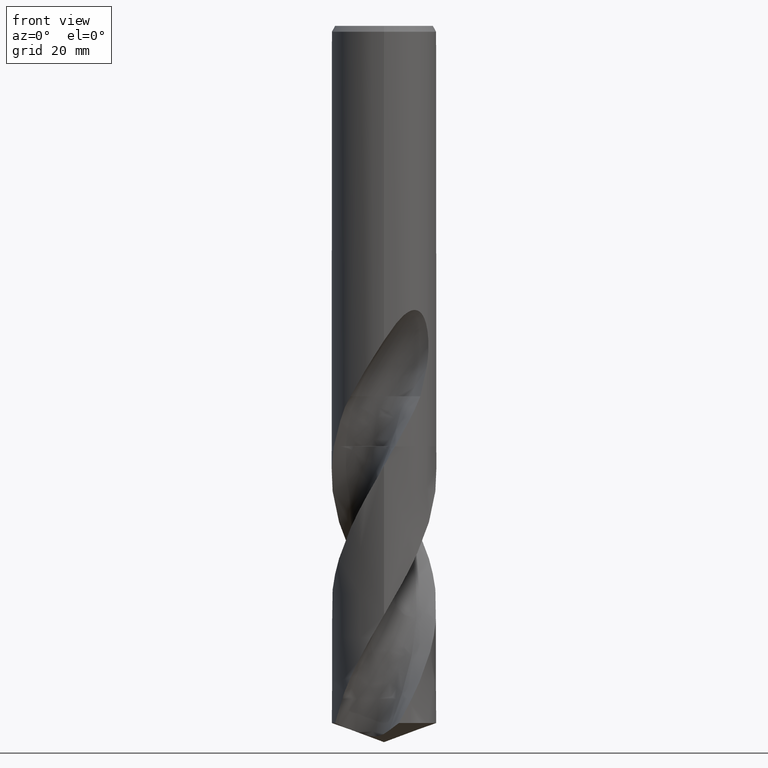
[diagram: clean part render]
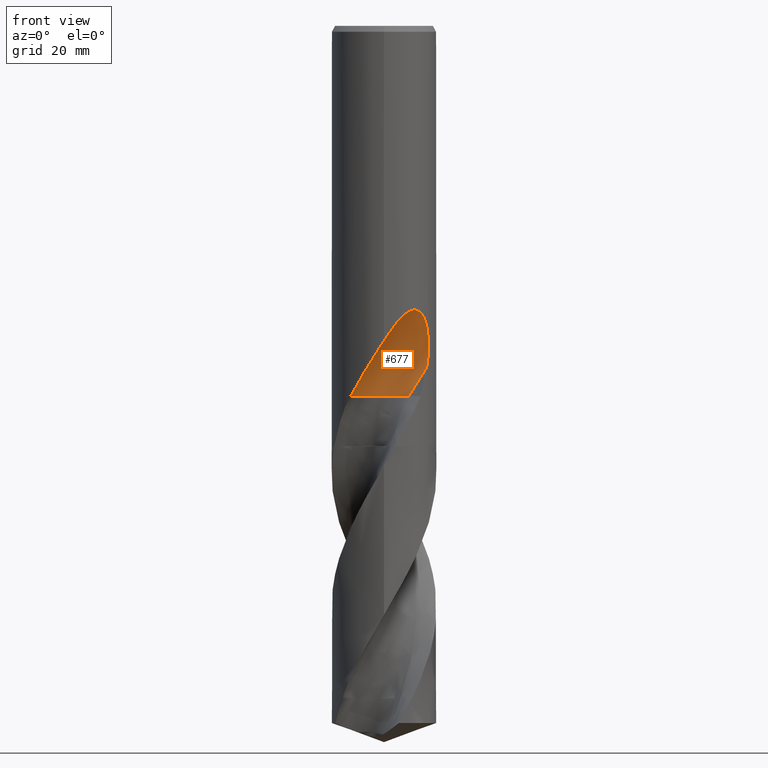
[diagram: same view with one face highlighted and labeled with its STEP entity id]
A machine part, front view. The second image highlights one B-rep face of the part: STEP entity #677.
In plain terms, the highlighted face is a SurfaceOfRevolution surface.
Its self-contained STEP definition (entity closure, byte-faithful):
#337=EDGE_CURVE('',#605,#355,#856,.T.);
#347=VERTEX_POINT('',#866);
#355=VERTEX_POINT('',#876);
#397=EDGE_CURVE('',#483,#605,#922,.T.);
#471=VERTEX_POINT('',#1005);
#483=VERTEX_POINT('',#1017);
#605=VERTEX_POINT('',#1151);
#625=EDGE_CURVE('',#347,#471,#1172,.T.);
#677=ADVANCED_FACE('',(#1227),#1228,.F.);
#747=EDGE_CURVE('',#355,#471,#1305,.T.);
#759=EDGE_CURVE('',#483,#347,#1318,.T.);
#856=CIRCLE('',#2321,6.0);
#866=CARTESIAN_POINT('',(3.49161102591519E-013,-9.0,-54.0462201875557));
#876=CARTESIAN_POINT('',(4.24264068704858,-4.45735931295143,-63.613));
#922=CIRCLE('',#3381,6.0);
#1005=CARTESIAN_POINT('',(7.32277946978824,-5.23229403195653,-58.6847779476165));
#1017=CARTESIAN_POINT('',(-5.73492168841538,-6.93618578382549,-63.613));
#1151=CARTESIAN_POINT('',(0.982866494863649,-2.78102920504439,-63.613));
#1172=B_SPLINE_CURVE_WITH_KNOTS('',3,(#6510,#6511,#6512,#6513,#6514,#6515,#6516,#6517,#6518,#6519,#6520,#6521,#6522,#6523,#6524,#6525,#6526,#6527,#6528,#6529,#6530,#6531,#6532,#6533,#6534,#6535,#6536,#6537,#6538,#6539),.UNSPECIFIED.,.F.,.F.,(4,2,2,2,2,2,2,2,2,2,2,2,2,2,4),(0.0,4.26297681796826,6.71123824567686,8.8923502902523,11.4048404132072,14.4393236699672,17.2190104172515,18.4220665226576,19.2988195253437,20.1268227676965,21.1747033682301,22.7056772339523,24.8835914108054,26.3262060908734,27.8429149951343),.UNSPECIFIED.);
#1227=FACE_OUTER_BOUND('',#6744,.T.);
#1228=SURFACE_OF_REVOLUTION('',#6745,#6746);
#1305=CIRCLE('',#8175,39.1073391014154);
#1318=B_SPLINE_CURVE_WITH_KNOTS('',3,(#8221,#8222,#8223,#8224,#8225,#8226,#8227,#8228,#8229,#8230,#8231,#8232,#8233,#8234,#8235,#8236,#8237,#8238,#8239,#8240,#8241,#8242,#8243,#8244,#8245,#8246,#8247,#8248,#8249,#8250),.UNSPECIFIED.,.F.,.F.,(4,2,2,2,2,2,2,2,2,2,2,2,2,2,4),(0.0,4.26297681796826,6.71123824567686,8.8923502902523,11.4048404132072,14.4393236699672,17.2190104172515,18.4220665226576,19.2988195253437,20.1268227676965,21.1747033682301,22.7056772339523,24.8835914108054,26.3262060908734,27.8429149951343),.UNSPECIFIED.);
#2321=AXIS2_PLACEMENT_3D('',#8365,#8366,#8367);
#3381=AXIS2_PLACEMENT_3D('',#8430,#8431,#8432);
#6510=CARTESIAN_POINT('',(-5.73492168841538,-6.93618578382549,-63.613));
#6511=CARTESIAN_POINT('',(-5.16097520996777,-7.41073162354542,-62.4027889750831));
#6512=CARTESIAN_POINT('',(-4.50323961744426,-7.8347969800284,-61.2711019271065));
#6513=CARTESIAN_POINT('',(-3.3386341242448,-8.37091803405727,-59.357427425757));
#6514=CARTESIAN_POINT('',(-2.90508277206161,-8.53057993351622,-58.6626427318968));
#6515=CARTESIAN_POINT('',(-2.0710842160197,-8.76798261059598,-57.3266821680771));
#6516=CARTESIAN_POINT('',(-1.6751227552052,-8.85180769196075,-56.6929284196982));
#6517=CARTESIAN_POINT('',(-0.821654960505643,-8.97429133944279,-55.3318457622473));
#6518=CARTESIAN_POINT('',(-0.357839078752724,-9.00503404958273,-54.5949986371053));
#6519=CARTESIAN_POINT('',(0.674520373064876,-8.99244222771654,-53.0104260437654));
#6520=CARTESIAN_POINT('',(1.2847967189417,-8.93109539021287,-52.108818087397));
#6521=CARTESIAN_POINT('',(2.49111116899763,-8.66849116014461,-50.5696530359618));
#6522=CARTESIAN_POINT('',(3.18448431243846,-8.45580107112017,-49.7866048541013));
#6523=CARTESIAN_POINT('',(4.21836400145844,-7.95773661676273,-49.0748423683706));
#6524=CARTESIAN_POINT('',(4.55010948894584,-7.77538091321004,-48.9039124357591));
#6525=CARTESIAN_POINT('',(5.13091889635501,-7.39991028912675,-48.7715717708757));
#6526=CARTESIAN_POINT('',(5.36891751792054,-7.22906662387612,-48.7681021644199));
#6527=CARTESIAN_POINT('',(5.81202000666779,-6.87720495531965,-48.8798337665018));
#6528=CARTESIAN_POINT('',(6.00573706071496,-6.70733336132389,-48.9853425996501));
#6529=CARTESIAN_POINT('',(6.39965739535683,-6.33529758040683,-49.3161457122653));
#6530=CARTESIAN_POINT('',(6.5818731941373,-6.14257158986256,-49.5604689839899));
#6531=CARTESIAN_POINT('',(6.95509287213986,-5.72173002688095,-50.229689613285));
#6532=CARTESIAN_POINT('',(7.1336231295101,-5.49245108859739,-50.7259809091335));
#6533=CARTESIAN_POINT('',(7.47013131329371,-5.0308698671016,-52.1157578504556));
#6534=CARTESIAN_POINT('',(7.59232823664967,-4.83339010444773,-53.1059009678357));
#6535=CARTESIAN_POINT('',(7.65533472660836,-4.73266218415034,-54.9474239173537));
#6536=CARTESIAN_POINT('',(7.64192712776329,-4.75490007471234,-55.6865422208702));
#6537=CARTESIAN_POINT('',(7.54267433568991,-4.91091079717557,-57.1868491551409));
#6538=CARTESIAN_POINT('',(7.4533050279318,-5.04961892394105,-57.9423768577601));
#6539=CARTESIAN_POINT('',(7.32277946978823,-5.23229403195653,-58.6847779476166));
#6744=EDGE_LOOP('',(#8687,#8688,#8689,#8690,#8691));
#6745=(B_SPLINE_CURVE(3,(#8693,#8694,#8695,#8696,#8697,#8698,#8699,#8700,#8701),.UNSPECIFIED.,.F.,.F.)B_SPLINE_CURVE_WITH_KNOTS((4,1,3,1,4),(-2.85639375994466,-2.55363798270679,-2.25088220546891,-1.94812642823103,-1.64537065099315),.UNSPECIFIED.)RATIONAL_B_SPLINE_CURVE((1.09166106065091,1.03055368688364,0.969446313116363,1.03055368688364,1.09166106065091,1.03055368688364,0.969446313116363,1.03055368688364,1.09166106065091))BOUNDED_CURVE()REPRESENTATION_ITEM('')GEOMETRIC_REPRESENTATION_ITEM()CURVE());
#6746=AXIS1_PLACEMENT('',#8708,#8709);
#8175=AXIS2_PLACEMENT_3D('',#8801,#8802,#8803);
#8221=CARTESIAN_POINT('',(-5.73492168841538,-6.93618578382549,-63.613));
#8222=CARTESIAN_POINT('',(-5.16097520996777,-7.41073162354542,-62.4027889750831));
#8223=CARTESIAN_POINT('',(-4.50323961744426,-7.8347969800284,-61.2711019271065));
#8224=CARTESIAN_POINT('',(-3.3386341242448,-8.37091803405727,-59.357427425757));
#8225=CARTESIAN_POINT('',(-2.90508277206161,-8.53057993351622,-58.6626427318968));
#8226=CARTESIAN_POINT('',(-2.0710842160197,-8.76798261059598,-57.3266821680771));
#8227=CARTESIAN_POINT('',(-1.6751227552052,-8.85180769196075,-56.6929284196982));
#8228=CARTESIAN_POINT('',(-0.821654960505643,-8.97429133944279,-55.3318457622473));
#8229=CARTESIAN_POINT('',(-0.357839078752724,-9.00503404958273,-54.5949986371053));
#8230=CARTESIAN_POINT('',(0.674520373064876,-8.99244222771654,-53.0104260437654));
#8231=CARTESIAN_POINT('',(1.2847967189417,-8.93109539021287,-52.108818087397));
#8232=CARTESIAN_POINT('',(2.49111116899763,-8.66849116014461,-50.5696530359618));
#8233=CARTESIAN_POINT('',(3.18448431243846,-8.45580107112017,-49.7866048541013));
#8234=CARTESIAN_POINT('',(4.21836400145844,-7.95773661676273,-49.0748423683706));
#8235=CARTESIAN_POINT('',(4.55010948894584,-7.77538091321004,-48.9039124357591));
#8236=CARTESIAN_POINT('',(5.13091889635501,-7.39991028912675,-48.7715717708757));
#8237=CARTESIAN_POINT('',(5.36891751792054,-7.22906662387612,-48.7681021644199));
#8238=CARTESIAN_POINT('',(5.81202000666779,-6.87720495531965,-48.8798337665018));
#8239=CARTESIAN_POINT('',(6.00573706071496,-6.70733336132389,-48.9853425996501));
#8240=CARTESIAN_POINT('',(6.39965739535683,-6.33529758040683,-49.3161457122653));
#8241=CARTESIAN_POINT('',(6.5818731941373,-6.14257158986256,-49.5604689839899));
#8242=CARTESIAN_POINT('',(6.95509287213986,-5.72173002688095,-50.229689613285));
#8243=CARTESIAN_POINT('',(7.1336231295101,-5.49245108859739,-50.7259809091335));
#8244=CARTESIAN_POINT('',(7.47013131329371,-5.0308698671016,-52.1157578504556));
#8245=CARTESIAN_POINT('',(7.59232823664967,-4.83339010444773,-53.1059009678357));
#8246=CARTESIAN_POINT('',(7.65533472660836,-4.73266218415034,-54.9474239173537));
#8247=CARTESIAN_POINT('',(7.64192712776329,-4.75490007471234,-55.6865422208702));
#8248=CARTESIAN_POINT('',(7.54267433568991,-4.91091079717557,-57.1868491551409));
#8249=CARTESIAN_POINT('',(7.4533050279318,-5.04961892394105,-57.9423768577601));
#8250=CARTESIAN_POINT('',(7.32277946978823,-5.23229403195653,-58.6847779476166));
#8365=CARTESIAN_POINT('',(-2.44949709595112E-005,-8.69997550502904,-63.613));
#8366=DIRECTION('',(-0.0,0.0,-1.0));
#8367=DIRECTION('',(-0.707102698679602,-0.707110863669923,0.0));
#8430=CARTESIAN_POINT('',(-2.44949709595112E-005,-8.69997550502904,-63.613));
#8431=DIRECTION('',(-0.0,0.0,-1.0));
#8432=DIRECTION('',(-0.707102698679602,-0.707110863669923,0.0));
#8687=ORIENTED_EDGE('',*,*,#759,.F.);
#8688=ORIENTED_EDGE('',*,*,#397,.T.);
#8689=ORIENTED_EDGE('',*,*,#337,.T.);
#8690=ORIENTED_EDGE('',*,*,#747,.T.);
#8691=ORIENTED_EDGE('',*,*,#625,.F.);
#8693=CARTESIAN_POINT('',(4.24264068704858,-4.45735931295143,-63.613));
#8694=CARTESIAN_POINT('',(3.41171094568551,-3.62641997675397,-63.613));
#8695=CARTESIAN_POINT('',(1.25110704323628,-2.44568893748585,-63.613));
#8696=CARTESIAN_POINT('',(-1.19744570346448,-2.70438655439443,-63.613));
#8697=CARTESIAN_POINT('',(-2.2840875476842,-3.15172749586162,-63.613));
#8698=CARTESIAN_POINT('',(-3.37072939190391,-3.59906843732881,-63.613));
#8699=CARTESIAN_POINT('',(-5.29174855029733,-5.1392049259088,-63.613));
#8700=CARTESIAN_POINT('',(-5.99487352307006,-7.49885538371677,-63.613));
#8701=CARTESIAN_POINT('',(-5.99996810818737,-8.67396323439451,-63.613));
#8708=CARTESIAN_POINT('',(3.05088768506864,-43.5,-65.5198048031679));
#8709=DIRECTION('',(-0.847998304005088,0.0,0.52999894000318));
#8801=CARTESIAN_POINT('',(3.05088768506864,-43.5,-65.5198048031679));
#8802=DIRECTION('',(0.847998304005088,-9.29188155437458E-018,-0.52999894000318));
#8803=DIRECTION('',(0.053559812253361,0.994880693138896,0.0856956996053776));